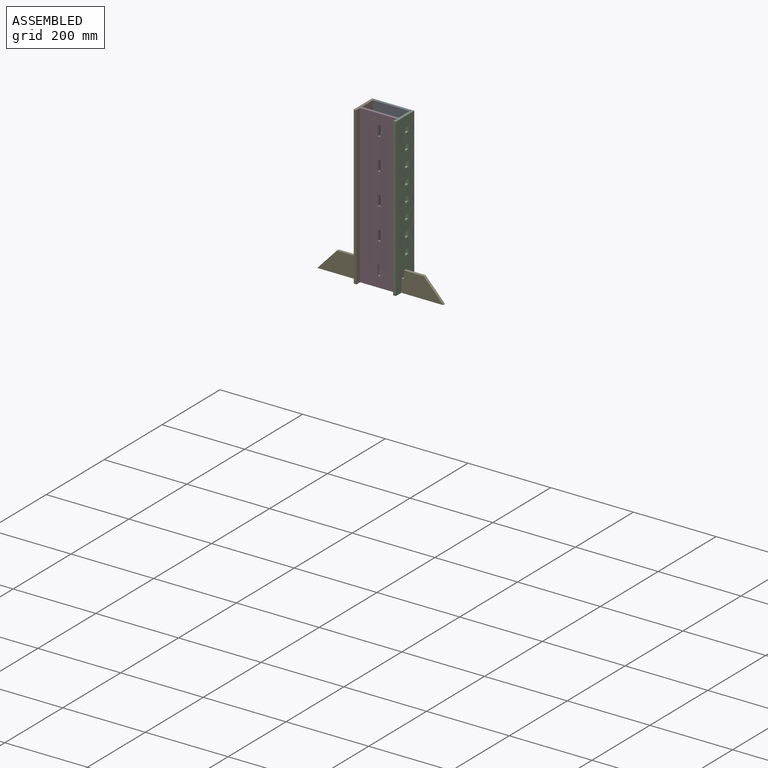
[diagram: assembled view]
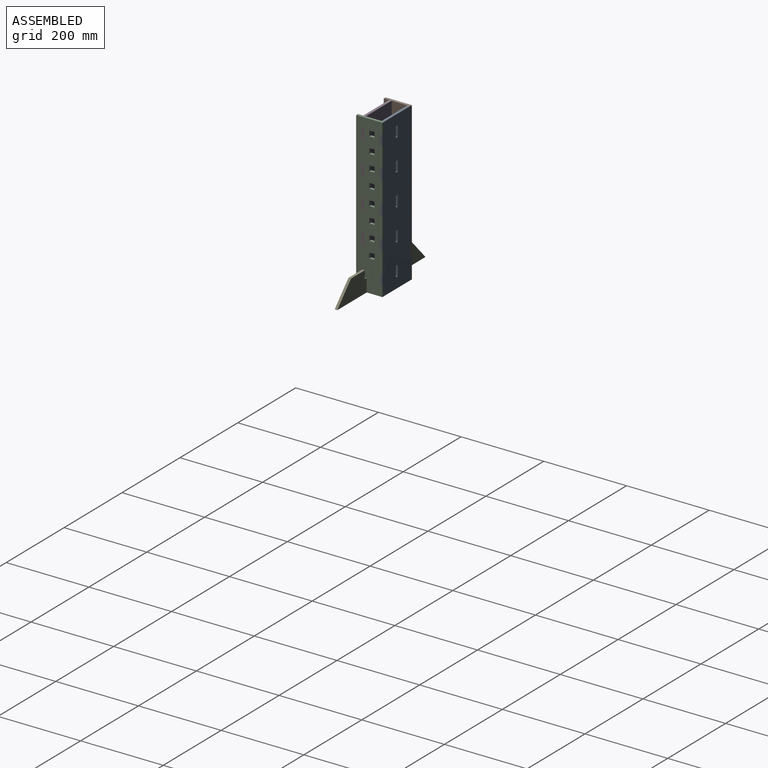
[diagram: assembled view, second angle]
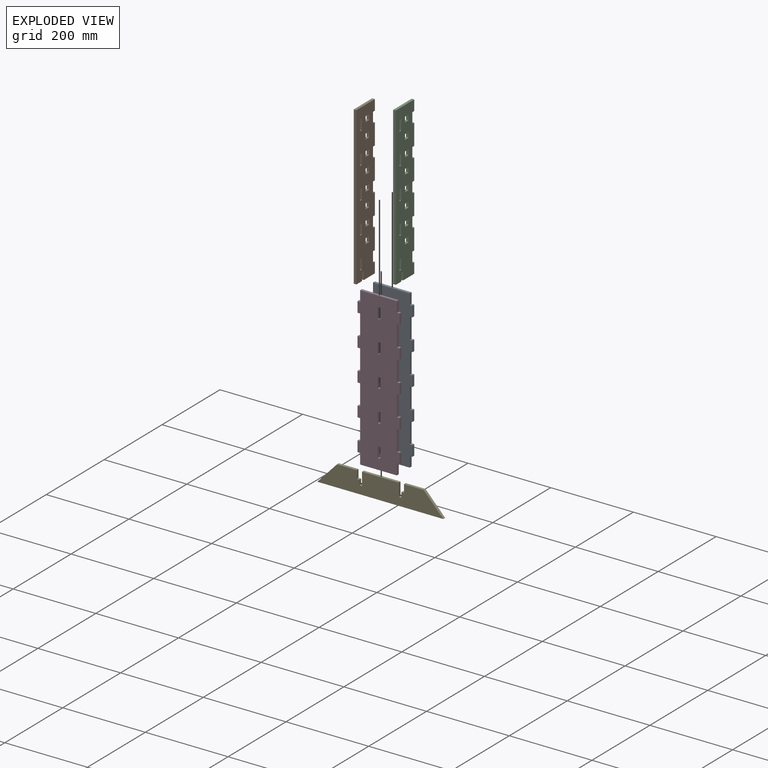
[diagram: exploded view]
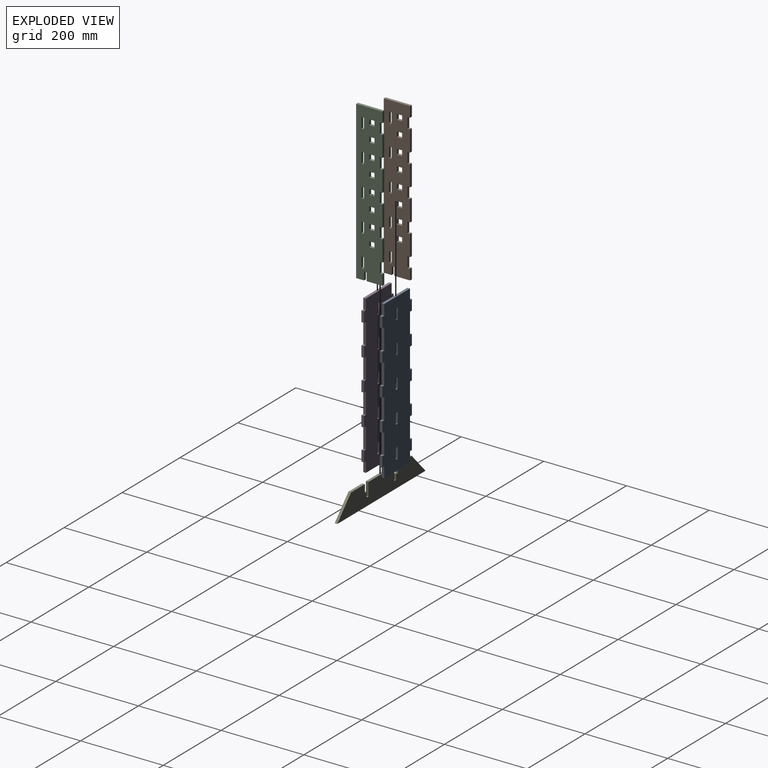
[diagram: exploded view, second angle]
ASSEMBLY  parts=5 mates=4
PART A: 66 faces, bbox 101.6x6.4x381 mm
  f0: plane 6.35x6.35mm, normal (0,0,-1), area 40.3mm2, adj f1,f63,f64,f65
  f1: plane 25.4x6.35mm, normal (1,0,0), area 161.3mm2, adj f0,f2,f64,f65
  f2: plane 6.35x6.35mm, normal (0,0,1), area 40.3mm2, adj f1,f3,f64,f65
  f3: plane 50.8x6.35mm, normal (1,0,0), area 322.6mm2, adj f2,f4,f64,f65
  f4: plane 6.35x6.35mm, normal (0,0,-1), area 40.3mm2, adj f3,f5,f64,f65
  f5: plane 25.4x6.35mm, normal (1,0,0), area 161.3mm2, adj f4,f6,f64,f65
  f6: plane 6.35x6.35mm, normal (0,0,1), area 40.3mm2, adj f5,f7,f64,f65
  f7: plane 50.8x6.35mm, normal (1,0,0), area 322.6mm2, adj f6,f8,f64,f65
  f8: plane 6.35x6.35mm, normal (0,0,-1), area 40.3mm2, adj f7,f9,f64,f65
  f9: plane 25.4x6.35mm, normal (1,0,0), area 161.3mm2, adj f8,f10,f64,f65
  f10: plane 6.35x6.35mm, normal (0,0,1), area 40.3mm2, adj f9,f11,f64,f65
  f11: plane 50.8x6.35mm, normal (1,0,0), area 322.6mm2, adj f10,f12,f64,f65
  f12: plane 6.35x6.35mm, normal (0,0,-1), area 40.3mm2, adj f11,f13,f64,f65
  f13: plane 25.4x6.35mm, normal (1,0,0), area 161.3mm2, adj f12,f14,f64,f65
  f14: plane 6.35x6.35mm, normal (0,0,1), area 40.3mm2, adj f13,f15,f64,f65
  f15: plane 50.8x6.35mm, normal (1,0,0), area 322.6mm2, adj f14,f16,f64,f65
  f16: plane 6.35x6.35mm, normal (0,0,-1), area 40.3mm2, adj f15,f17,f64,f65
  f17: plane 25.4x6.35mm, normal (1,0,0), area 161.3mm2, adj f16,f18,f64,f65
  f18: plane 6.35x6.35mm, normal (0,0,1), area 40.3mm2, adj f17,f19,f64,f65
  f19: plane 25.4x6.35mm, normal (1,0,0), area 161.3mm2, adj f18,f20,f64,f65
  f20: plane 88.9x6.35mm, normal (0,0,1), area 564.5mm2, adj f19,f21,f64,f65
  f21: plane 25.4x6.35mm, normal (-1,0,0), area 161.3mm2, adj f20,f22,f64,f65
  f22: plane 6.35x6.35mm, normal (0,0,1), area 40.3mm2, adj f21,f23,f64,f65
  f23: plane 25.4x6.35mm, normal (-1,0,0), area 161.3mm2, adj f22,f24,f64,f65
  f24: plane 6.35x6.35mm, normal (0,0,-1), area 40.3mm2, adj f23,f25,f64,f65
  f25: plane 50.8x6.35mm, normal (-1,0,0), area 322.6mm2, adj f24,f26,f64,f65
  f26: plane 6.35x6.35mm, normal (0,0,1), area 40.3mm2, adj f25,f27,f64,f65
  f27: plane 25.4x6.35mm, normal (-1,0,0), area 161.3mm2, adj f26,f28,f64,f65
  f28: plane 6.35x6.35mm, normal (0,0,-1), area 40.3mm2, adj f27,f29,f64,f65
  f29: plane 50.8x6.35mm, normal (-1,0,0), area 322.6mm2, adj f28,f30,f64,f65
  f30: plane 6.35x6.35mm, normal (0,0,1), area 40.3mm2, adj f29,f31,f64,f65
  f31: plane 25.4x6.35mm, normal (-1,0,0), area 161.3mm2, adj f30,f32,f64,f65
  f32: plane 6.35x6.35mm, normal (0,0,-1), area 40.3mm2, adj f31,f33,f64,f65
  f33: plane 50.8x6.35mm, normal (-1,0,0), area 322.6mm2, adj f32,f34,f64,f65
  f34: plane 6.35x6.35mm, normal (0,0,1), area 40.3mm2, adj f33,f35,f64,f65
  f35: plane 25.4x6.35mm, normal (-1,0,0), area 161.3mm2, adj f34,f36,f64,f65
  f36: plane 6.35x6.35mm, normal (0,0,-1), area 40.3mm2, adj f35,f37,f64,f65
  f37: plane 50.8x6.35mm, normal (-1,0,0), area 322.6mm2, adj f36,f38,f64,f65
  f38: plane 6.35x6.35mm, normal (0,0,1), area 40.3mm2, adj f37,f39,f64,f65
  f39: plane 25.4x6.35mm, normal (-1,0,0), area 161.3mm2, adj f38,f40,f64,f65
  f40: plane 6.35x6.35mm, normal (0,0,-1), area 40.3mm2, adj f39,f41,f64,f65
  f41: plane 25.4x6.35mm, normal (-1,0,0), area 161.3mm2, adj f40,f42,f64,f65
  f42: plane 88.9x6.35mm, normal (0,0,-1), area 564.5mm2, adj f41,f63,f64,f65
  f43: plane 25.4x6.35mm, normal (1,0,0), area 161.3mm2, adj f44,f58,f64,f65
  f44: plane 6.35x6.35mm, normal (0,0,-1), area 40.3mm2, adj f43,f45,f64,f65
  f45: plane 25.4x6.35mm, normal (-1,0,0), area 161.3mm2, adj f44,f58,f64,f65
  f46: plane 25.4x6.35mm, normal (1,0,0), area 161.3mm2, adj f47,f59,f64,f65
  f47: plane 6.35x6.35mm, normal (0,0,-1), area 40.3mm2, adj f46,f48,f64,f65
  f48: plane 25.4x6.35mm, normal (-1,0,0), area 161.3mm2, adj f47,f59,f64,f65
  f49: plane 25.4x6.35mm, normal (1,0,0), area 161.3mm2, adj f50,f60,f64,f65
  f50: plane 6.35x6.35mm, normal (0,0,-1), area 40.3mm2, adj f49,f51,f64,f65
  f51: plane 25.4x6.35mm, normal (-1,0,0), area 161.3mm2, adj f50,f60,f64,f65
  f52: plane 25.4x6.35mm, normal (1,0,0), area 161.3mm2, adj f53,f61,f64,f65
  f53: plane 6.35x6.35mm, normal (0,0,-1), area 40.3mm2, adj f52,f54,f64,f65
  f54: plane 25.4x6.35mm, normal (-1,0,0), area 161.3mm2, adj f53,f61,f64,f65
  f55: plane 25.4x6.35mm, normal (1,0,0), area 161.3mm2, adj f56,f62,f64,f65
  f56: plane 6.35x6.35mm, normal (0,0,-1), area 40.3mm2, adj f55,f57,f64,f65
  f57: plane 25.4x6.35mm, normal (-1,0,0), area 161.3mm2, adj f56,f62,f64,f65
  f58: plane 6.35x6.35mm, normal (0,0,1), area 40.3mm2, adj f43,f45,f64,f65
  f59: plane 6.35x6.35mm, normal (0,0,1), area 40.3mm2, adj f46,f48,f64,f65
  f60: plane 6.35x6.35mm, normal (0,0,1), area 40.3mm2, adj f49,f51,f64,f65
  f61: plane 6.35x6.35mm, normal (0,0,1), area 40.3mm2, adj f52,f54,f64,f65
  f62: plane 6.35x6.35mm, normal (0,0,1), area 40.3mm2, adj f55,f57,f64,f65
  f63: plane 25.4x6.35mm, normal (1,0,0), area 161.3mm2, adj f0,f42,f64,f65
  f64: plane 381x101.6mm, normal (0,-1,0), area 34677.3mm2, adj f0,f1,f2,f3,f4,f5,f6,f7
  f65: plane 381x101.6mm, normal (0,1,0), area 34677.4mm2, adj f0,f1,f2,f3,f4,f5,f6,f7
PART B: 82 faces, bbox 63.5x6.4x381 mm
  f0: plane 6.35x6.35mm, normal (0,0,-1), area 40.3mm2, adj f1,f79,f80,f81
  f1: plane 25.4x6.35mm, normal (-1,0,0), area 161.3mm2, adj f0,f2,f80,f81
  f2: plane 6.35x6.35mm, normal (0,0,1), area 40.3mm2, adj f1,f79,f80,f81
  f3: plane 12.7x6.35mm, normal (0,0,1), area 80.6mm2, adj f4,f66,f80,f81
  f4: plane 12.7x6.35mm, normal (1,0,0), area 80.6mm2, adj f3,f5,f80,f81
  f5: plane 12.7x6.35mm, normal (0,0,-1), area 80.6mm2, adj f4,f66,f80,f81
  f6: plane 12.7x6.35mm, normal (0,0,1), area 80.6mm2, adj f7,f67,f80,f81
  f7: plane 12.7x6.35mm, normal (1,0,0), area 80.6mm2, adj f6,f8,f80,f81
  f8: plane 12.7x6.35mm, normal (0,0,-1), area 80.6mm2, adj f7,f67,f80,f81
  f9: plane 12.7x6.35mm, normal (0,0,1), area 80.6mm2, adj f10,f68,f80,f81
  f10: plane 12.7x6.35mm, normal (1,0,0), area 80.6mm2, adj f9,f11,f80,f81
  f11: plane 12.7x6.35mm, normal (0,0,-1), area 80.6mm2, adj f10,f68,f80,f81
  f12: plane 12.7x6.35mm, normal (0,0,1), area 80.6mm2, adj f13,f69,f80,f81
  f13: plane 12.7x6.35mm, normal (1,0,0), area 80.6mm2, adj f12,f14,f80,f81
  f14: plane 12.7x6.35mm, normal (0,0,-1), area 80.6mm2, adj f13,f69,f80,f81
  f15: plane 12.7x6.35mm, normal (0,0,1), area 80.6mm2, adj f16,f70,f80,f81
  f16: plane 12.7x6.35mm, normal (1,0,0), area 80.6mm2, adj f15,f17,f80,f81
  f17: plane 12.7x6.35mm, normal (0,0,-1), area 80.6mm2, adj f16,f70,f80,f81
  f18: plane 12.7x6.35mm, normal (0,0,1), area 80.6mm2, adj f19,f71,f80,f81
  f19: plane 12.7x6.35mm, normal (1,0,0), area 80.6mm2, adj f18,f20,f80,f81
  f20: plane 12.7x6.35mm, normal (0,0,-1), area 80.6mm2, adj f19,f71,f80,f81
  f21: plane 12.7x6.35mm, normal (0,0,1), area 80.6mm2, adj f22,f72,f80,f81
  f22: plane 12.7x6.35mm, normal (1,0,0), area 80.6mm2, adj f21,f23,f80,f81
  f23: plane 12.7x6.35mm, normal (0,0,-1), area 80.6mm2, adj f22,f72,f80,f81
  f24: plane 12.7x6.35mm, normal (0,0,1), area 80.6mm2, adj f25,f73,f80,f81
  f25: plane 12.7x6.35mm, normal (1,0,0), area 80.6mm2, adj f24,f26,f80,f81
  f26: plane 12.7x6.35mm, normal (0,0,-1), area 80.6mm2, adj f25,f73,f80,f81
  f27: plane 50.8x6.35mm, normal (-1,0,0), area 322.6mm2, adj f28,f74,f80,f81
  f28: plane 6.35x6.35mm, normal (0,0,-1), area 40.3mm2, adj f27,f29,f80,f81
  f29: plane 25.4x6.35mm, normal (-1,0,0), area 161.3mm2, adj f28,f30,f80,f81
  f30: plane 6.35x6.35mm, normal (0,0,1), area 40.3mm2, adj f29,f31,f80,f81
  f31: plane 50.8x6.35mm, normal (-1,0,0), area 322.6mm2, adj f30,f32,f80,f81
  f32: plane 6.35x6.35mm, normal (0,0,-1), area 40.3mm2, adj f31,f33,f80,f81
  f33: plane 25.4x6.35mm, normal (-1,0,0), area 161.3mm2, adj f32,f34,f80,f81
  f34: plane 6.35x6.35mm, normal (0,0,1), area 40.3mm2, adj f33,f35,f80,f81
  f35: plane 50.8x6.35mm, normal (-1,0,0), area 322.6mm2, adj f34,f36,f80,f81
  f36: plane 6.35x6.35mm, normal (0,0,-1), area 40.3mm2, adj f35,f37,f80,f81
  f37: plane 25.4x6.35mm, normal (-1,0,0), area 161.3mm2, adj f36,f38,f80,f81
  f38: plane 6.35x6.35mm, normal (0,0,1), area 40.3mm2, adj f37,f39,f80,f81
  f39: plane 25.4x6.35mm, normal (-1,0,0), area 161.3mm2, adj f38,f40,f80,f81
  f40: plane 38.1x6.35mm, normal (0,0,-1), area 241.9mm2, adj f39,f41,f80,f81
  f41: plane 19.05x6.35mm, normal (1,0,0), area 121mm2, adj f40,f42,f80,f81
  f42: plane 6.35x6.35mm, normal (0,0,-1), area 40.3mm2, adj f41,f43,f80,f81
  f43: plane 19.05x6.35mm, normal (-1,0,0), area 121mm2, adj f42,f44,f80,f81
  f44: plane 19.05x6.35mm, normal (0,0,-1), area 121mm2, adj f43,f45,f80,f81
  f45: plane 381x6.35mm, normal (1,0,0), area 2419.3mm2, adj f44,f46,f80,f81
  f46: plane 63.5x6.35mm, normal (0,0,1), area 403.2mm2, adj f45,f47,f80,f81
  f47: plane 25.4x6.35mm, normal (-1,0,0), area 161.3mm2, adj f46,f48,f80,f81
  f48: plane 6.35x6.35mm, normal (0,0,-1), area 40.3mm2, adj f47,f49,f80,f81
  f49: plane 25.4x6.35mm, normal (-1,0,0), area 161.3mm2, adj f48,f50,f80,f81
  f50: plane 6.35x6.35mm, normal (0,0,1), area 40.3mm2, adj f49,f51,f80,f81
  f51: plane 50.8x6.35mm, normal (-1,0,0), area 322.6mm2, adj f50,f52,f80,f81
  f52: plane 6.35x6.35mm, normal (0,0,-1), area 40.3mm2, adj f51,f53,f80,f81
  f53: plane 25.4x6.35mm, normal (-1,0,0), area 161.3mm2, adj f52,f74,f80,f81
  f54: plane 25.4x6.35mm, normal (1,0,0), area 161.3mm2, adj f55,f75,f80,f81
  f55: plane 6.35x6.35mm, normal (0,0,-1), area 40.3mm2, adj f54,f56,f80,f81
  f56: plane 25.4x6.35mm, normal (-1,0,0), area 161.3mm2, adj f55,f75,f80,f81
  f57: plane 25.4x6.35mm, normal (1,0,0), area 161.3mm2, adj f58,f76,f80,f81
  f58: plane 6.35x6.35mm, normal (0,0,-1), area 40.3mm2, adj f57,f59,f80,f81
  f59: plane 25.4x6.35mm, normal (-1,0,0), area 161.3mm2, adj f58,f76,f80,f81
  f60: plane 25.4x6.35mm, normal (1,0,0), area 161.3mm2, adj f61,f77,f80,f81
  f61: plane 6.35x6.35mm, normal (0,0,-1), area 40.3mm2, adj f60,f62,f80,f81
  f62: plane 25.4x6.35mm, normal (-1,0,0), area 161.3mm2, adj f61,f77,f80,f81
  f63: plane 25.4x6.35mm, normal (1,0,0), area 161.3mm2, adj f64,f78,f80,f81
  f64: plane 6.35x6.35mm, normal (0,0,-1), area 40.3mm2, adj f63,f65,f80,f81
  f65: plane 25.4x6.35mm, normal (-1,0,0), area 161.3mm2, adj f64,f78,f80,f81
  f66: plane 12.7x6.35mm, normal (-1,0,0), area 80.6mm2, adj f3,f5,f80,f81
  f67: plane 12.7x6.35mm, normal (-1,0,0), area 80.6mm2, adj f6,f8,f80,f81
  f68: plane 12.7x6.35mm, normal (-1,0,0), area 80.6mm2, adj f9,f11,f80,f81
  f69: plane 12.7x6.35mm, normal (-1,0,0), area 80.6mm2, adj f12,f14,f80,f81
  f70: plane 12.7x6.35mm, normal (-1,0,0), area 80.6mm2, adj f15,f17,f80,f81
  f71: plane 12.7x6.35mm, normal (-1,0,0), area 80.6mm2, adj f18,f20,f80,f81
  f72: plane 12.7x6.35mm, normal (-1,0,0), area 80.6mm2, adj f21,f23,f80,f81
  f73: plane 12.7x6.35mm, normal (-1,0,0), area 80.6mm2, adj f24,f26,f80,f81
  f74: plane 6.35x6.35mm, normal (0,0,1), area 40.3mm2, adj f27,f53,f80,f81
  f75: plane 6.35x6.35mm, normal (0,0,1), area 40.3mm2, adj f54,f56,f80,f81
  f76: plane 6.35x6.35mm, normal (0,0,1), area 40.3mm2, adj f57,f59,f80,f81
  f77: plane 6.35x6.35mm, normal (0,0,1), area 40.3mm2, adj f60,f62,f80,f81
  f78: plane 6.35x6.35mm, normal (0,0,1), area 40.3mm2, adj f63,f65,f80,f81
  f79: plane 25.4x6.35mm, normal (1,0,0), area 161.3mm2, adj f0,f2,f80,f81
  f80: plane 381x63.5mm, normal (0,-1,0), area 21169.3mm2, adj f0,f1,f2,f3,f4,f5,f6,f7
  f81: plane 381x63.5mm, normal (0,1,0), area 21169.3mm2, adj f0,f1,f2,f3,f4,f5,f6,f7
PART C: same geometry as B
PART D: same geometry as A
PART E: 18 faces, bbox 304.8x6.4x50.8 mm
  f0: plane 88.9x6.35mm, normal (0,0,1), area 564.5mm2, adj f1,f15,f16,f17
  f1: plane 31.75x6.35mm, normal (-1,0,0), area 201.6mm2, adj f0,f2,f16,f17
  f2: plane 6.35x6.35mm, normal (0,0,1), area 40.3mm2, adj f1,f3,f16,f17
  f3: plane 12.7x6.35mm, normal (1,0,0), area 80.6mm2, adj f2,f4,f16,f17
  f4: plane 6.35x6.35mm, normal (0,0,1), area 40.3mm2, adj f3,f5,f16,f17
  f5: plane 19.05x6.35mm, normal (1,0,0), area 121mm2, adj f4,f6,f16,f17
  f6: plane 47.63x6.35mm, normal (0,0,1), area 302.4mm2, adj f5,f7,f16,f17
  f7: plane 50.8x47.63mm, normal (-0.73,0,0.68), area 442.2mm2, adj f6,f8,f16,f17
  f8: plane 304.8x6.35mm, normal (0,0,-1), area 1935.5mm2, adj f7,f9,f16,f17
  f9: plane 50.8x47.63mm, normal (0.73,0,0.68), area 442.2mm2, adj f8,f10,f16,f17
  f10: plane 47.63x6.35mm, normal (0,0,1), area 302.4mm2, adj f9,f11,f16,f17
  f11: plane 19.05x6.35mm, normal (-1,0,0), area 121mm2, adj f10,f12,f16,f17
  f12: plane 6.35x6.35mm, normal (0,0,1), area 40.3mm2, adj f11,f13,f16,f17
  f13: plane 12.7x6.35mm, normal (-1,0,0), area 80.6mm2, adj f12,f14,f16,f17
  f14: plane 6.35x6.35mm, normal (0,0,1), area 40.3mm2, adj f13,f15,f16,f17
  f15: plane 31.75x6.35mm, normal (1,0,0), area 201.6mm2, adj f0,f14,f16,f17
  f16: plane 304.8x50.8mm, normal (0,-1,0), area 12419.3mm2, adj f0,f1,f2,f3,f4,f5,f6,f7
  f17: plane 304.8x50.8mm, normal (0,1,0), area 12419.3mm2, adj f0,f1,f2,f3,f4,f5,f6,f7
PLACE A t=(-293.21,19.6,10.28)mm
PLACE B rot(axis=(0,0,-1),90deg) t=(-338.85,-195.1,10.28)mm
PLACE C rot(axis=(0,0,-1),90deg) t=(-243.6,-195.1,10.28)mm
PLACE D t=(-293.21,-24.85,10.28)mm
PLACE E t=(103.04,-18.5,10.28)mm
MATE fastened D.f18 <-> C.f64  axis (0,0,1) through (-246.77,-28.03,365.88)mm
MATE fastened E.f2 <-> B.f42  axis (0,0,1) through (-342.02,-21.68,29.33)mm
MATE fastened A.f22 <-> B.f48  axis (0,0,1) through (-342.02,16.42,365.88)mm
MATE fastened D.f22 <-> B.f64  axis (0,0,1) through (-342.02,-28.03,365.88)mm
